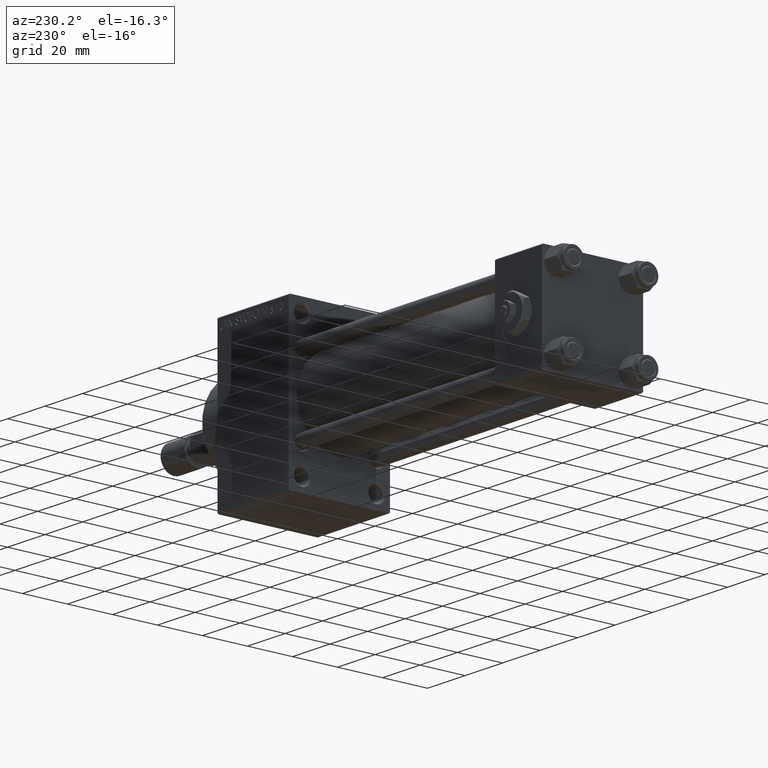
[diagram: clean part render]
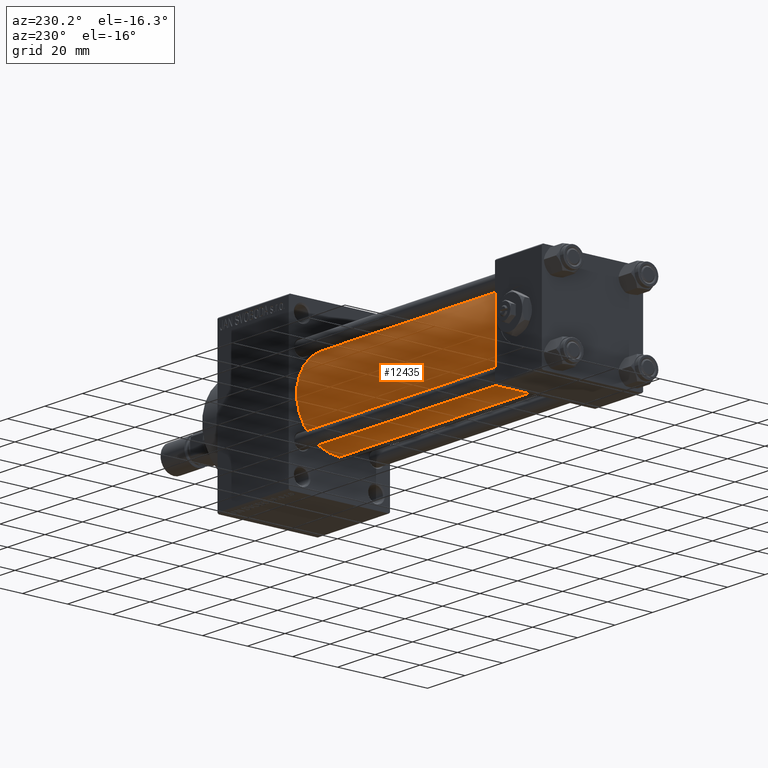
[diagram: same view with one face highlighted and labeled with its STEP entity id]
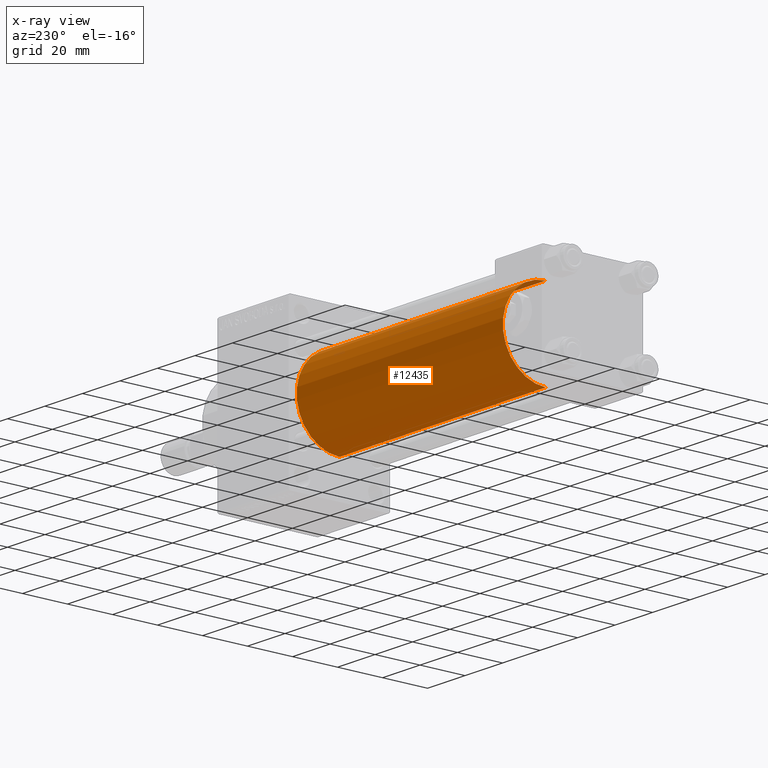
[diagram: x-ray of the same camera — body ghosted, the highlighted face saturated]
A machine part, auxiliary view. The second image highlights one B-rep face of the part: STEP entity #12435.
The next image is the same camera in x-ray: the body ghosted, the highlighted face saturated — about 0% of this face is hidden behind the body in this view.
In plain terms, the highlighted cylindrical surface (partial cylindrical patch) has radius 19 mm, axis along (-1, -0, -0).
Its self-contained STEP definition (entity closure, byte-faithful):
#1742 = EDGE_CURVE ( 'NONE', #17232, #37782, #47166, .T. ) ;
#2086 = DIRECTION ( 'NONE',  ( -1.000000000000000000, -0.000000000000000000, -0.000000000000000000 ) ) ;
#2551 = AXIS2_PLACEMENT_3D ( 'NONE', #29446, #48715, #29701 ) ;
#3320 = CARTESIAN_POINT ( 'NONE',  ( 135.0000000000000000, -2.752562955852396712E-16, -19.00000000000000000 ) ) ;
#4230 = VECTOR ( 'NONE', #18165, 1000.000000000000000 ) ;
#7498 = DIRECTION ( 'NONE',  ( 0.000000000000000000, 0.000000000000000000, 1.000000000000000000 ) ) ;
#10286 = VECTOR ( 'NONE', #2086, 1000.000000000000000 ) ;
#10988 = ORIENTED_EDGE ( 'NONE', *, *, #1742, .F. ) ;
#11358 = ORIENTED_EDGE ( 'NONE', *, *, #36823, .T. ) ;
#11387 = VERTEX_POINT ( 'NONE', #3320 ) ;
#11822 = AXIS2_PLACEMENT_3D ( 'NONE', #38281, #22291, #7498 ) ;
#12435 = ADVANCED_FACE ( 'NONE', ( #48460 ), #14183, .T. ) ;
#13569 = VERTEX_POINT ( 'NONE', #45817 ) ;
#14183 = CYLINDRICAL_SURFACE ( 'NONE', #2551, 19.00000000000000000 ) ;
#17232 = VERTEX_POINT ( 'NONE', #40379 ) ;
#18165 = DIRECTION ( 'NONE',  ( -1.000000000000000000, -0.000000000000000000, -0.000000000000000000 ) ) ;
#19822 = ORIENTED_EDGE ( 'NONE', *, *, #35146, .F. ) ;
#20508 = CARTESIAN_POINT ( 'NONE',  ( 135.0000000000000000, -2.602085213965210642E-15, 0.000000000000000000 ) ) ;
#22291 = DIRECTION ( 'NONE',  ( 1.000000000000000000, -0.000000000000000000, 0.000000000000000000 ) ) ;
#26908 = CARTESIAN_POINT ( 'NONE',  ( 24.99999999999999289, -2.602085213965210642E-15, 19.00000000000000000 ) ) ;
#28561 = CIRCLE ( 'NONE', #11822, 19.00000000000000000 ) ;
#29446 = CARTESIAN_POINT ( 'NONE',  ( 135.0000000000000000, -2.602085213965210642E-15, 0.000000000000000000 ) ) ;
#29701 = DIRECTION ( 'NONE',  ( 0.000000000000000000, 0.000000000000000000, 1.000000000000000000 ) ) ;
#31462 = CIRCLE ( 'NONE', #37836, 19.00000000000000000 ) ;
#32003 = DIRECTION ( 'NONE',  ( 1.000000000000000000, 0.000000000000000000, 0.000000000000000000 ) ) ;
#35146 = EDGE_CURVE ( 'NONE', #11387, #17232, #31462, .T. ) ;
#36823 = EDGE_CURVE ( 'NONE', #11387, #13569, #37413, .T. ) ;
#37413 = LINE ( 'NONE', #49180, #4230 ) ;
#37782 = VERTEX_POINT ( 'NONE', #26908 ) ;
#37836 = AXIS2_PLACEMENT_3D ( 'NONE', #20508, #32003, #45486 ) ;
#38281 = CARTESIAN_POINT ( 'NONE',  ( 24.99999999999999289, -2.602085213965210642E-15, 0.000000000000000000 ) ) ;
#40157 = CARTESIAN_POINT ( 'NONE',  ( 135.0000000000000000, -2.602085213965210642E-15, 19.00000000000000000 ) ) ;
#40379 = CARTESIAN_POINT ( 'NONE',  ( 135.0000000000000000, -2.602085213965210642E-15, 19.00000000000000000 ) ) ;
#42869 = ORIENTED_EDGE ( 'NONE', *, *, #47672, .T. ) ;
#45486 = DIRECTION ( 'NONE',  ( 0.000000000000000000, 0.000000000000000000, -1.000000000000000000 ) ) ;
#45817 = CARTESIAN_POINT ( 'NONE',  ( 24.99999999999999289, -2.752562955852396712E-16, -19.00000000000000000 ) ) ;
#45986 = EDGE_LOOP ( 'NONE', ( #19822, #11358, #42869, #10988 ) ) ;
#47166 = LINE ( 'NONE', #40157, #10286 ) ;
#47672 = EDGE_CURVE ( 'NONE', #13569, #37782, #28561, .T. ) ;
#48460 = FACE_OUTER_BOUND ( 'NONE', #45986, .T. ) ;
#48715 = DIRECTION ( 'NONE',  ( -1.000000000000000000, -0.000000000000000000, -0.000000000000000000 ) ) ;
#49180 = CARTESIAN_POINT ( 'NONE',  ( 135.0000000000000000, -2.752562955852396712E-16, -19.00000000000000000 ) ) ;